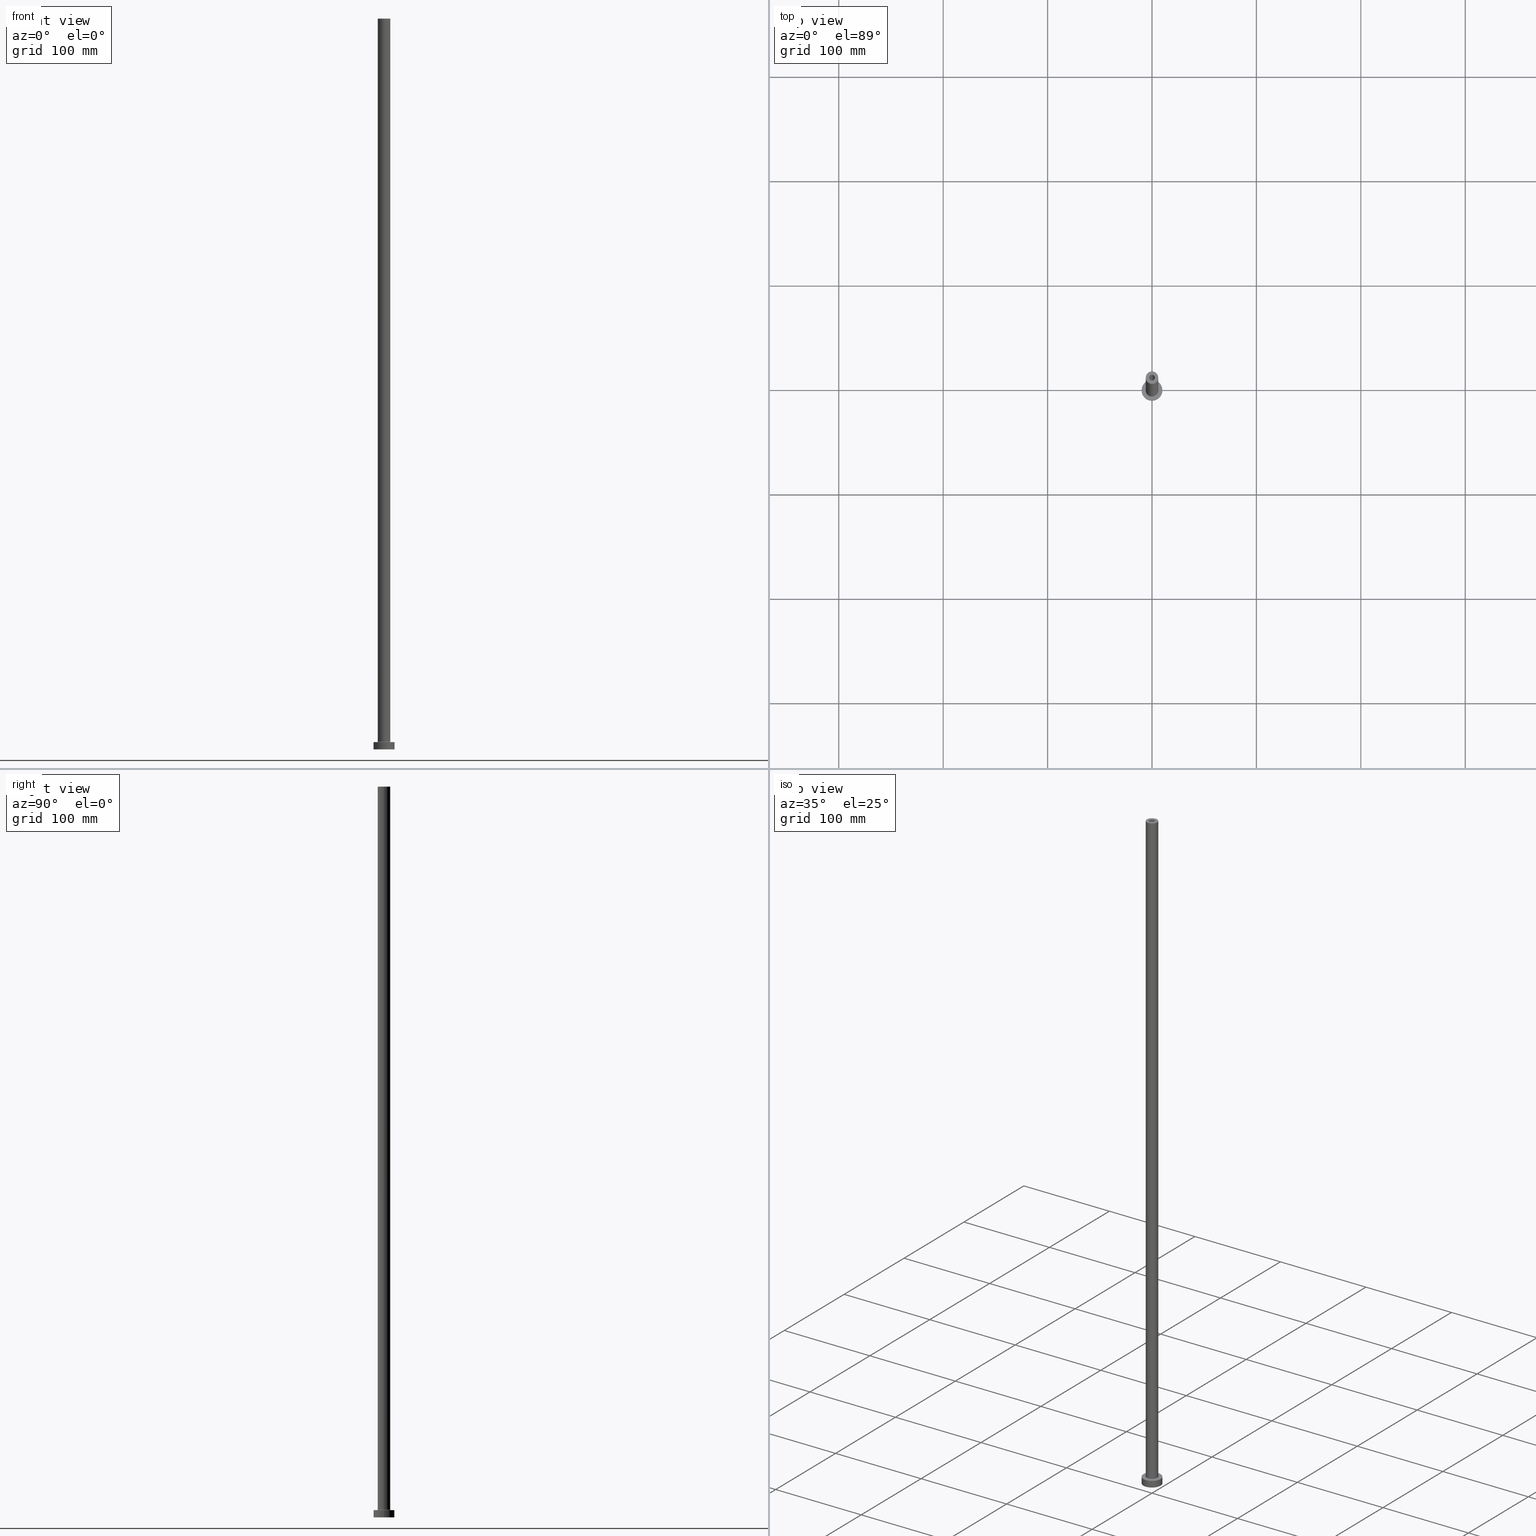
[diagram: canonical four-view strip — front | top / right | iso, engineering-drawing reading convention]
A machine part, canonical four-view strip (front | top / right | iso — engineering-drawing reading convention). The complete STEP part file that produces these views, byte-faithful:
ISO-10303-21;
HEADER;
FILE_DESCRIPTION (( 'STEP AP203' ),
    '1' );
FILE_NAME ('c770.STEP',
    '2023-02-13T15:52:32',
    ( '' ),
    ( '' ),
    'SwSTEP 2.0',
    'SolidWorks 2019',
    '' );
FILE_SCHEMA (( 'CONFIG_CONTROL_DESIGN' ));
ENDSEC;

DATA;
#1 = FACE_OUTER_BOUND ( 'NONE', #172, .T. ) ;
#2 = EDGE_CURVE ( 'NONE', #39, #442, #166, .T. ) ;
#3 = PERSON_AND_ORGANIZATION ( #159, #47 ) ;
#4 = ORIENTED_EDGE ( 'NONE', *, *, #199, .F. ) ;
#5 = PLANE ( 'NONE',  #275 ) ;
#6 = EDGE_CURVE ( 'NONE', #231, #229, #101, .T. ) ;
#7 = ORIENTED_EDGE ( 'NONE', *, *, #147, .F. ) ;
#8 = CYLINDRICAL_SURFACE ( 'NONE', #126, 2.750000000000000000 ) ;
#9 = SECURITY_CLASSIFICATION_LEVEL ( 'unclassified' ) ;
#10 = VECTOR ( 'NONE', #291, 1000.000000000000000 ) ;
#11 = PRODUCT_DEFINITION ( 'NEZN�M�', '', #296, #419 ) ;
#12 = DIRECTION ( 'NONE',  ( 0.000000000000000000, 0.000000000000000000, -1.000000000000000000 ) ) ;
#13 = ORIENTED_EDGE ( 'NONE', *, *, #209, .F. ) ;
#14 = DIRECTION ( 'NONE',  ( 1.000000000000000000, 0.000000000000000000, 0.000000000000000000 ) ) ;
#15 = ORIENTED_EDGE ( 'NONE', *, *, #248, .T. ) ;
#16 = EDGE_LOOP ( 'NONE', ( #394, #213, #215, #180 ) ) ;
#17 = ORIENTED_EDGE ( 'NONE', *, *, #444, .F. ) ;
#18 = CARTESIAN_POINT ( 'NONE',  ( 2.750000000000000000, 3.367778697655221012E-16, 654.9999999999998863 ) ) ;
#19 = CARTESIAN_POINT ( 'NONE',  ( 0.000000000000000000, 0.000000000000000000, 7.000000000000000000 ) ) ;
#20 = VERTEX_POINT ( 'NONE', #27 ) ;
#21 = CIRCLE ( 'NONE', #26, 6.000000000000000888 ) ;
#22 = LOCAL_TIME ( 16, 52, 32.00000000000000000, #434 ) ;
#23 = LINE ( 'NONE', #342, #86 ) ;
#24 = CARTESIAN_POINT ( 'NONE',  ( 0.000000000000000000, 0.000000000000000000, 0.000000000000000000 ) ) ;
#25 = ORIENTED_EDGE ( 'NONE', *, *, #2, .F. ) ;
#26 = AXIS2_PLACEMENT_3D ( 'NONE', #257, #289, #373 ) ;
#27 = CARTESIAN_POINT ( 'NONE',  ( -6.500000000000000888, 7.960204194457796463E-16, 6.999999999999975131 ) ) ;
#28 = FACE_OUTER_BOUND ( 'NONE', #453, .T. ) ;
#29 = DIRECTION ( 'NONE',  ( -1.000000000000000000, 0.000000000000000000, 0.000000000000000000 ) ) ;
#30 = APPROVAL_STATUS ( 'not_yet_approved' ) ;
#31 = FACE_OUTER_BOUND ( 'NONE', #43, .T. ) ;
#32 = APPROVAL_DATE_TIME ( #391, #334 ) ;
#33 = VERTEX_POINT ( 'NONE', #97 ) ;
#34 = AXIS2_PLACEMENT_3D ( 'NONE', #433, #361, #191 ) ;
#35 = DIRECTION ( 'NONE',  ( 0.000000000000000000, 0.000000000000000000, 1.000000000000000000 ) ) ;
#36 = EDGE_CURVE ( 'NONE', #271, #49, #366, .T. ) ;
#37 = ORIENTED_EDGE ( 'NONE', *, *, #444, .T. ) ;
#38 = CALENDAR_DATE ( 2023, 13, 2 ) ;
#39 = VERTEX_POINT ( 'NONE', #253 ) ;
#40 = ORIENTED_EDGE ( 'NONE', *, *, #266, .T. ) ;
#41 = DIRECTION ( 'NONE',  ( 0.000000000000000000, 0.000000000000000000, -1.000000000000000000 ) ) ;
#42 = CC_DESIGN_DATE_AND_TIME_ASSIGNMENT ( #118, #262, ( #52 ) ) ;
#43 = EDGE_LOOP ( 'NONE', ( #7, #40, #401, #359 ) ) ;
#44 = DATE_AND_TIME ( #178, #450 ) ;
#45 = LINE ( 'NONE', #188, #131 ) ;
#46 = EDGE_LOOP ( 'NONE', ( #285, #4 ) ) ;
#47 = ORGANIZATION ( 'NEUR�EN�', 'NEUR�EN�', '' ) ;
#48 = DIRECTION ( 'NONE',  ( 1.000000000000000000, 0.000000000000000000, 0.000000000000000000 ) ) ;
#49 = VERTEX_POINT ( 'NONE', #100 ) ;
#50 = AXIS2_PLACEMENT_3D ( 'NONE', #84, #268, #91 ) ;
#51 = AXIS2_PLACEMENT_3D ( 'NONE', #402, #263, #81 ) ;
#52 = SECURITY_CLASSIFICATION ( '', '', #9 ) ;
#53 = DIRECTION ( 'NONE',  ( 0.000000000000000000, 0.000000000000000000, -1.000000000000000000 ) ) ;
#54 = LINE ( 'NONE', #294, #355 ) ;
#55 = FACE_BOUND ( 'NONE', #330, .T. ) ;
#56 = CIRCLE ( 'NONE', #160, 2.750000000000000000 ) ;
#57 = DIRECTION ( 'NONE',  ( 1.000000000000000000, 0.000000000000000000, 0.000000000000000000 ) ) ;
#58 = ORIENTED_EDGE ( 'NONE', *, *, #6, .T. ) ;
#59 = DIRECTION ( 'NONE',  ( 0.000000000000000000, 0.000000000000000000, 1.000000000000000000 ) ) ;
#60 = EDGE_CURVE ( 'NONE', #49, #271, #302, .T. ) ;
#61 = DIRECTION ( 'NONE',  ( 0.000000000000000000, 0.000000000000000000, -1.000000000000000000 ) ) ;
#62 = CARTESIAN_POINT ( 'NONE',  ( 0.000000000000000000, 0.000000000000000000, 7.000000000000000000 ) ) ;
#63 = ORIENTED_EDGE ( 'NONE', *, *, #415, .T. ) ;
#64 = ORIENTED_EDGE ( 'NONE', *, *, #318, .T. ) ;
#65 = CIRCLE ( 'NONE', #50, 10.00000000000000000 ) ;
#66 = DIRECTION ( 'NONE',  ( -0.000000000000000000, -0.000000000000000000, -1.000000000000000000 ) ) ;
#67 = ADVANCED_FACE ( 'NONE', ( #105 ), #245, .T. ) ;
#68 = DIRECTION ( 'NONE',  ( -0.000000000000000000, -0.000000000000000000, -1.000000000000000000 ) ) ;
#69 = DIRECTION ( 'NONE',  ( 0.000000000000000000, -1.000000000000000000, 0.000000000000000000 ) ) ;
#70 = SHAPE_DEFINITION_REPRESENTATION ( #362, #351 ) ;
#71 = DIRECTION ( 'NONE',  ( 0.000000000000000000, 0.000000000000000000, 1.000000000000000000 ) ) ;
#72 = DIRECTION ( 'NONE',  ( 1.000000000000000000, 0.000000000000000000, 0.000000000000000000 ) ) ;
#73 = ADVANCED_FACE ( 'NONE', ( #273, #310 ), #5, .F. ) ;
#74 = CARTESIAN_POINT ( 'NONE',  ( 0.000000000000000000, 0.000000000000000000, 663.2024386617637219 ) ) ;
#75 = ORIENTED_EDGE ( 'NONE', *, *, #194, .F. ) ;
#76 = VECTOR ( 'NONE', #239, 1000.000000000000000 ) ;
#77 = APPROVAL_ROLE ( '' ) ;
#78 = ADVANCED_FACE ( 'NONE', ( #1 ), #278, .F. ) ;
#79 = DIRECTION ( 'NONE',  ( 1.224646799147353207E-16, 1.000000000000000000, -0.000000000000000000 ) ) ;
#80 = APPLICATION_PROTOCOL_DEFINITION ( 'international standard', 'config_control_design', 1994, #206 ) ;
#81 = DIRECTION ( 'NONE',  ( 1.000000000000000000, 0.000000000000000000, -0.000000000000000000 ) ) ;
#82 = EDGE_LOOP ( 'NONE', ( #17, #304, #413, #132 ) ) ;
#83 = CLOSED_SHELL ( 'NONE', ( #89, #78, #125, #356, #447, #451, #234, #382, #67, #403, #425, #168, #73, #230 ) ) ;
#84 = CARTESIAN_POINT ( 'NONE',  ( 0.000000000000000000, 0.000000000000000000, 7.000000000000000000 ) ) ;
#85 = EDGE_CURVE ( 'NONE', #442, #39, #337, .T. ) ;
#86 = VECTOR ( 'NONE', #378, 1000.000000000000000 ) ;
#87 = VERTEX_POINT ( 'NONE', #175 ) ;
#88 = AXIS2_PLACEMENT_3D ( 'NONE', #423, #35, #454 ) ;
#89 = ADVANCED_FACE ( 'NONE', ( #357 ), #354, .F. ) ;
#90 = LINE ( 'NONE', #111, #411 ) ;
#91 = DIRECTION ( 'NONE',  ( 1.000000000000000000, 0.000000000000000000, 0.000000000000000000 ) ) ;
#92 = CIRCLE ( 'NONE', #108, 0.5000000000000004441 ) ;
#93 =( NAMED_UNIT ( * ) PLANE_ANGLE_UNIT ( ) SI_UNIT ( $, .RADIAN. ) );
#94 = AXIS2_PLACEMENT_3D ( 'NONE', #365, #439, #14 ) ;
#95 =( GEOMETRIC_REPRESENTATION_CONTEXT ( 3 ) GLOBAL_UNCERTAINTY_ASSIGNED_CONTEXT ( ( #129 ) ) GLOBAL_UNIT_ASSIGNED_CONTEXT ( ( #417, #93, #430 ) ) REPRESENTATION_CONTEXT ( 'NONE', 'WORKASPACE' ) );
#96 = CARTESIAN_POINT ( 'NONE',  ( 0.000000000000000000, 0.000000000000000000, 700.0000000000000000 ) ) ;
#97 = CARTESIAN_POINT ( 'NONE',  ( -2.750000000000000000, 0.000000000000000000, 654.9999999999998863 ) ) ;
#98 = CARTESIAN_POINT ( 'NONE',  ( 0.000000000000000000, 0.000000000000000000, 700.0000000000000000 ) ) ;
#99 = EDGE_CURVE ( 'NONE', #116, #308, #92, .T. ) ;
#100 = CARTESIAN_POINT ( 'NONE',  ( 6.000000000000000888, 7.347880794884120722E-16, 700.0000000000000000 ) ) ;
#101 = CIRCLE ( 'NONE', #88, 2.899999999999999911 ) ;
#102 = DIRECTION ( 'NONE',  ( 1.000000000000000000, 0.000000000000000000, 0.000000000000000000 ) ) ;
#103 = ORIENTED_EDGE ( 'NONE', *, *, #153, .T. ) ;
#104 = AXIS2_PLACEMENT_3D ( 'NONE', #251, #71, #144 ) ;
#105 = FACE_OUTER_BOUND ( 'NONE', #16, .T. ) ;
#106 = EDGE_LOOP ( 'NONE', ( #348, #298, #15, #221 ) ) ;
#107 = DIRECTION ( 'NONE',  ( 0.000000000000000000, 0.000000000000000000, 1.000000000000000000 ) ) ;
#108 = AXIS2_PLACEMENT_3D ( 'NONE', #280, #69, #385 ) ;
#109 = PERSON_AND_ORGANIZATION ( #159, #47 ) ;
#110 = CC_DESIGN_PERSON_AND_ORGANIZATION_ASSIGNMENT ( #321, #283, ( #11 ) ) ;
#111 = CARTESIAN_POINT ( 'NONE',  ( -2.899999999999999911, 0.000000000000000000, 663.2024386617637219 ) ) ;
#112 = AXIS2_PLACEMENT_3D ( 'NONE', #62, #414, #207 ) ;
#113 = LOCAL_TIME ( 16, 52, 32.00000000000000000, #259 ) ;
#114 = CC_DESIGN_SECURITY_CLASSIFICATION ( #52, ( #296 ) ) ;
#115 = CARTESIAN_POINT ( 'NONE',  ( 0.000000000000000000, 0.000000000000000000, 0.000000000000000000 ) ) ;
#116 = VERTEX_POINT ( 'NONE', #353 ) ;
#117 = CARTESIAN_POINT ( 'NONE',  ( 0.000000000000000000, 0.000000000000000000, 7.499999999999951150 ) ) ;
#118 = DATE_AND_TIME ( #38, #309 ) ;
#119 = DIRECTION ( 'NONE',  ( 1.000000000000000000, 0.000000000000000000, 0.000000000000000000 ) ) ;
#120 = PRODUCT ( 'c770', 'c770', '', ( #143 ) ) ;
#121 = DIRECTION ( 'NONE',  ( 0.000000000000000000, 0.000000000000000000, 1.000000000000000000 ) ) ;
#122 = CC_DESIGN_PERSON_AND_ORGANIZATION_ASSIGNMENT ( #316, #324, ( #296 ) ) ;
#123 = AXIS2_PLACEMENT_3D ( 'NONE', #431, #152, #323 ) ;
#124 = EDGE_CURVE ( 'NONE', #271, #165, #208, .T. ) ;
#125 = ADVANCED_FACE ( 'NONE', ( #31 ), #435, .F. ) ;
#126 = AXIS2_PLACEMENT_3D ( 'NONE', #412, #41, #282 ) ;
#127 = CARTESIAN_POINT ( 'NONE',  ( -2.750000000000000000, 0.000000000000000000, 700.0000000000000000 ) ) ;
#128 = FACE_OUTER_BOUND ( 'NONE', #192, .T. ) ;
#129 = UNCERTAINTY_MEASURE_WITH_UNIT (LENGTH_MEASURE( 1.000000000000000082E-05 ), #417, 'distance_accuracy_value', 'NONE');
#130 = DIRECTION ( 'NONE',  ( 1.000000000000000000, 0.000000000000000000, -0.000000000000000000 ) ) ;
#131 = VECTOR ( 'NONE', #53, 1000.000000000000000 ) ;
#132 = ORIENTED_EDGE ( 'NONE', *, *, #369, .F. ) ;
#133 = DIRECTION ( 'NONE',  ( -1.000000000000000000, 0.000000000000000000, 0.000000000000000000 ) ) ;
#134 = CARTESIAN_POINT ( 'NONE',  ( 0.000000000000000000, 0.000000000000000000, 654.9999999999998863 ) ) ;
#135 = EDGE_LOOP ( 'NONE', ( #25, #343 ) ) ;
#136 = CARTESIAN_POINT ( 'NONE',  ( 0.000000000000000000, 0.000000000000000000, 7.000000000000000000 ) ) ;
#137 = ORIENTED_EDGE ( 'NONE', *, *, #60, .T. ) ;
#138 = ORIENTED_EDGE ( 'NONE', *, *, #6, .F. ) ;
#139 = AXIS2_PLACEMENT_3D ( 'NONE', #74, #247, #29 ) ;
#140 = DATE_AND_TIME ( #458, #418 ) ;
#141 = CIRCLE ( 'NONE', #367, 0.5000000000000004441 ) ;
#142 = ORIENTED_EDGE ( 'NONE', *, *, #332, .T. ) ;
#143 = MECHANICAL_CONTEXT ( 'NONE', #206, 'mechanical' ) ;
#144 = DIRECTION ( 'NONE',  ( 1.000000000000000000, 0.000000000000000000, 0.000000000000000000 ) ) ;
#145 = EDGE_CURVE ( 'NONE', #229, #231, #441, .T. ) ;
#146 = CARTESIAN_POINT ( 'NONE',  ( 0.000000000000000000, 0.000000000000000000, 0.000000000000000000 ) ) ;
#147 = EDGE_CURVE ( 'NONE', #165, #116, #254, .T. ) ;
#148 = ORIENTED_EDGE ( 'NONE', *, *, #163, .F. ) ;
#149 = DIRECTION ( 'NONE',  ( -1.000000000000000000, 0.000000000000000000, 0.000000000000000000 ) ) ;
#150 = PERSON_AND_ORGANIZATION ( #159, #47 ) ;
#151 = DIRECTION ( 'NONE',  ( 1.000000000000000000, 0.000000000000000000, 0.000000000000000000 ) ) ;
#152 = DIRECTION ( 'NONE',  ( 0.000000000000000000, 0.000000000000000000, 1.000000000000000000 ) ) ;
#153 = EDGE_CURVE ( 'NONE', #33, #193, #189, .T. ) ;
#154 = ORIENTED_EDGE ( 'NONE', *, *, #145, .T. ) ;
#155 = ORIENTED_EDGE ( 'NONE', *, *, #223, .T. ) ;
#156 = ORIENTED_EDGE ( 'NONE', *, *, #409, .F. ) ;
#157 = FACE_OUTER_BOUND ( 'NONE', #360, .T. ) ;
#158 = AXIS2_PLACEMENT_3D ( 'NONE', #395, #428, #315 ) ;
#159 = PERSON ( 'NEUR�EN�', 'NEUR�EN�', 'NEUR�EN�', ('NEUR�EN�'), ('NEUR�EN�'), ('NEUR�EN�') ) ;
#160 = AXIS2_PLACEMENT_3D ( 'NONE', #222, #121, #119 ) ;
#161 = DIRECTION ( 'NONE',  ( 1.000000000000000000, 0.000000000000000000, 0.000000000000000000 ) ) ;
#162 = CARTESIAN_POINT ( 'NONE',  ( 0.000000000000000000, 0.000000000000000000, 7.499999999999951150 ) ) ;
#163 = EDGE_CURVE ( 'NONE', #20, #308, #179, .T. ) ;
#164 = CARTESIAN_POINT ( 'NONE',  ( 0.000000000000000000, 0.000000000000000000, 654.9999999999998863 ) ) ;
#165 = VERTEX_POINT ( 'NONE', #326 ) ;
#166 = CIRCLE ( 'NONE', #244, 10.00000000000000000 ) ;
#167 = ORIENTED_EDGE ( 'NONE', *, *, #145, .F. ) ;
#168 = ADVANCED_FACE ( 'NONE', ( #157 ), #327, .F. ) ;
#169 = CYLINDRICAL_SURFACE ( 'NONE', #112, 10.00000000000000000 ) ;
#170 = EDGE_LOOP ( 'NONE', ( #167, #138 ) ) ;
#171 = AXIS2_PLACEMENT_3D ( 'NONE', #246, #445, #388 ) ;
#172 = EDGE_LOOP ( 'NONE', ( #154, #341, #314, #75 ) ) ;
#173 = DIRECTION ( 'NONE',  ( 1.000000000000000000, 0.000000000000000000, 0.000000000000000000 ) ) ;
#174 = DIRECTION ( 'NONE',  ( 1.000000000000000000, 0.000000000000000000, 0.000000000000000000 ) ) ;
#175 = CARTESIAN_POINT ( 'NONE',  ( 2.750000000000000000, 3.367778697655221012E-16, 700.0000000000000000 ) ) ;
#176 = APPROVAL_ROLE ( '' ) ;
#177 = AXIS2_PLACEMENT_3D ( 'NONE', #317, #217, #173 ) ;
#178 = CALENDAR_DATE ( 2023, 13, 2 ) ;
#179 = CIRCLE ( 'NONE', #34, 6.500000000000000888 ) ;
#180 = ORIENTED_EDGE ( 'NONE', *, *, #147, .T. ) ;
#181 = DATE_TIME_ROLE ( 'creation_date' ) ;
#182 = DIRECTION ( 'NONE',  ( -1.000000000000000000, 0.000000000000000000, 0.000000000000000000 ) ) ;
#183 = CC_DESIGN_PERSON_AND_ORGANIZATION_ASSIGNMENT ( #3, #461, ( #296 ) ) ;
#184 = PERSON_AND_ORGANIZATION_ROLE ( 'design_owner' ) ;
#185 = ORIENTED_EDGE ( 'NONE', *, *, #269, .F. ) ;
#186 = DIRECTION ( 'NONE',  ( 0.000000000000000000, 0.000000000000000000, -1.000000000000000000 ) ) ;
#187 = APPROVAL_DATE_TIME ( #44, #379 ) ;
#188 = CARTESIAN_POINT ( 'NONE',  ( 2.899999999999999911, 3.551475717527323832E-16, 663.2024386617637219 ) ) ;
#189 = CIRCLE ( 'NONE', #376, 2.750000000000000000 ) ;
#190 = CC_DESIGN_APPROVAL ( #284, ( #52 ) ) ;
#191 = DIRECTION ( 'NONE',  ( 1.000000000000000000, 0.000000000000000000, 0.000000000000000000 ) ) ;
#192 = EDGE_LOOP ( 'NONE', ( #236, #405, #333, #371 ) ) ;
#193 = VERTEX_POINT ( 'NONE', #18 ) ;
#194 = EDGE_CURVE ( 'NONE', #229, #457, #90, .T. ) ;
#195 = TOROIDAL_SURFACE ( 'NONE', #325, 6.500000000000000888, 0.5000000000000000000 ) ;
#196 = APPROVAL_PERSON_ORGANIZATION ( #279, #379, #77 ) ;
#197 = EDGE_LOOP ( 'NONE', ( #64, #37 ) ) ;
#198 = DIRECTION ( 'NONE',  ( 0.000000000000000000, 0.000000000000000000, -1.000000000000000000 ) ) ;
#199 = EDGE_CURVE ( 'NONE', #380, #457, #295, .T. ) ;
#200 = FACE_BOUND ( 'NONE', #303, .T. ) ;
#201 = FACE_OUTER_BOUND ( 'NONE', #370, .T. ) ;
#202 = CC_DESIGN_DATE_AND_TIME_ASSIGNMENT ( #363, #181, ( #11 ) ) ;
#203 = CC_DESIGN_APPROVAL ( #334, ( #11 ) ) ;
#204 = FACE_OUTER_BOUND ( 'NONE', #82, .T. ) ;
#205 = VERTEX_POINT ( 'NONE', #127 ) ;
#206 = APPLICATION_CONTEXT ( 'configuration controlled 3d designs of mechanical parts and assemblies' ) ;
#207 = DIRECTION ( 'NONE',  ( -1.000000000000000000, 0.000000000000000000, 0.000000000000000000 ) ) ;
#208 = LINE ( 'NONE', #216, #386 ) ;
#209 = EDGE_CURVE ( 'NONE', #116, #165, #21, .T. ) ;
#210 = PLANE ( 'NONE',  #286 ) ;
#211 = ORIENTED_EDGE ( 'NONE', *, *, #153, .F. ) ;
#212 = AXIS2_PLACEMENT_3D ( 'NONE', #117, #410, #48 ) ;
#213 = ORIENTED_EDGE ( 'NONE', *, *, #36, .F. ) ;
#214 = CARTESIAN_POINT ( 'NONE',  ( 10.00000000000000000, 1.224646799147353256E-15, 0.000000000000000000 ) ) ;
#215 = ORIENTED_EDGE ( 'NONE', *, *, #124, .T. ) ;
#216 = CARTESIAN_POINT ( 'NONE',  ( -6.000000000000000888, 0.000000000000000000, 700.0000000000000000 ) ) ;
#217 = DIRECTION ( 'NONE',  ( 0.000000000000000000, 0.000000000000000000, 1.000000000000000000 ) ) ;
#218 = AXIS2_PLACEMENT_3D ( 'NONE', #19, #352, #174 ) ;
#219 = DIRECTION ( 'NONE',  ( 1.000000000000000000, 0.000000000000000000, 0.000000000000000000 ) ) ;
#220 = APPROVAL_DATE_TIME ( #140, #284 ) ;
#221 = ORIENTED_EDGE ( 'NONE', *, *, #422, .F. ) ;
#222 = CARTESIAN_POINT ( 'NONE',  ( 0.000000000000000000, 0.000000000000000000, 700.0000000000000000 ) ) ;
#223 = EDGE_CURVE ( 'NONE', #87, #193, #287, .T. ) ;
#224 = APPROVAL_STATUS ( 'not_yet_approved' ) ;
#225 = CARTESIAN_POINT ( 'NONE',  ( 2.899999999999999911, 3.551475717527323832E-16, 654.9999999999998863 ) ) ;
#226 = PERSON_AND_ORGANIZATION ( #159, #47 ) ;
#227 = FACE_OUTER_BOUND ( 'NONE', #106, .T. ) ;
#228 = AXIS2_PLACEMENT_3D ( 'NONE', #243, #448, #340 ) ;
#229 = VERTEX_POINT ( 'NONE', #336 ) ;
#230 = ADVANCED_FACE ( 'NONE', ( #227 ), #8, .F. ) ;
#231 = VERTEX_POINT ( 'NONE', #225 ) ;
#232 = ORIENTED_EDGE ( 'NONE', *, *, #240, .F. ) ;
#233 = DIRECTION ( 'NONE',  ( 0.000000000000000000, 0.000000000000000000, 1.000000000000000000 ) ) ;
#234 = ADVANCED_FACE ( 'NONE', ( #200, #399 ), #261, .T. ) ;
#235 = CARTESIAN_POINT ( 'NONE',  ( 0.000000000000000000, 0.000000000000000000, 654.9999999999998863 ) ) ;
#236 = ORIENTED_EDGE ( 'NONE', *, *, #60, .F. ) ;
#237 = LINE ( 'NONE', #270, #76 ) ;
#238 = AXIS2_PLACEMENT_3D ( 'NONE', #320, #383, #219 ) ;
#239 = DIRECTION ( 'NONE',  ( -0.000000000000000000, -0.000000000000000000, -1.000000000000000000 ) ) ;
#240 = EDGE_CURVE ( 'NONE', #231, #380, #45, .T. ) ;
#241 = DIRECTION ( 'NONE',  ( 1.000000000000000000, 0.000000000000000000, 0.000000000000000000 ) ) ;
#242 = DIRECTION ( 'NONE',  ( 0.000000000000000000, 0.000000000000000000, 1.000000000000000000 ) ) ;
#243 = CARTESIAN_POINT ( 'NONE',  ( 0.000000000000000000, 0.000000000000000000, 0.000000000000000000 ) ) ;
#244 = AXIS2_PLACEMENT_3D ( 'NONE', #146, #107, #456 ) ;
#245 = CYLINDRICAL_SURFACE ( 'NONE', #158, 6.000000000000000888 ) ;
#246 = CARTESIAN_POINT ( 'NONE',  ( 0.000000000000000000, 0.000000000000000000, 700.0000000000000000 ) ) ;
#247 = DIRECTION ( 'NONE',  ( 0.000000000000000000, 0.000000000000000000, -1.000000000000000000 ) ) ;
#248 = EDGE_CURVE ( 'NONE', #205, #33, #54, .T. ) ;
#249 = APPROVAL_STATUS ( 'not_yet_approved' ) ;
#250 = ORIENTED_EDGE ( 'NONE', *, *, #99, .T. ) ;
#251 = CARTESIAN_POINT ( 'NONE',  ( 0.000000000000000000, 0.000000000000000000, 7.499999999999951150 ) ) ;
#252 = ORIENTED_EDGE ( 'NONE', *, *, #369, .T. ) ;
#253 = CARTESIAN_POINT ( 'NONE',  ( -10.00000000000000000, 0.000000000000000000, 0.000000000000000000 ) ) ;
#254 = CIRCLE ( 'NONE', #212, 6.000000000000000888 ) ;
#255 = ORIENTED_EDGE ( 'NONE', *, *, #163, .T. ) ;
#256 = AXIS2_PLACEMENT_3D ( 'NONE', #98, #349, #133 ) ;
#257 = CARTESIAN_POINT ( 'NONE',  ( 0.000000000000000000, 0.000000000000000000, 7.499999999999951150 ) ) ;
#258 = CC_DESIGN_APPROVAL ( #379, ( #296 ) ) ;
#259 = COORDINATED_UNIVERSAL_TIME_OFFSET ( 1, 0, .AHEAD. ) ;
#260 = CC_DESIGN_PERSON_AND_ORGANIZATION_ASSIGNMENT ( #150, #288, ( #52 ) ) ;
#261 = PLANE ( 'NONE',  #51 ) ;
#262 = DATE_TIME_ROLE ( 'classification_date' ) ;
#263 = DIRECTION ( 'NONE',  ( 0.000000000000000000, 0.000000000000000000, 1.000000000000000000 ) ) ;
#264 = MANIFOLD_SOLID_BREP ( 'Odebrat vysunut�m4', #83 ) ;
#265 = CARTESIAN_POINT ( 'NONE',  ( 10.00000000000000000, 1.224646799147353256E-15, 7.000000000000000000 ) ) ;
#266 = EDGE_CURVE ( 'NONE', #165, #20, #141, .T. ) ;
#267 = AXIS2_PLACEMENT_3D ( 'NONE', #164, #59, #102 ) ;
#268 = DIRECTION ( 'NONE',  ( 0.000000000000000000, 0.000000000000000000, 1.000000000000000000 ) ) ;
#269 = EDGE_CURVE ( 'NONE', #205, #87, #56, .T. ) ;
#270 = CARTESIAN_POINT ( 'NONE',  ( -10.00000000000000000, 0.000000000000000000, 7.000000000000000000 ) ) ;
#271 = VERTEX_POINT ( 'NONE', #338 ) ;
#272 = CYLINDRICAL_SURFACE ( 'NONE', #256, 6.000000000000000888 ) ;
#273 = FACE_BOUND ( 'NONE', #432, .T. ) ;
#274 = CARTESIAN_POINT ( 'NONE',  ( -2.899999999999999911, 0.000000000000000000, 0.000000000000000000 ) ) ;
#275 = AXIS2_PLACEMENT_3D ( 'NONE', #134, #426, #347 ) ;
#276 = ORIENTED_EDGE ( 'NONE', *, *, #318, .F. ) ;
#277 = VECTOR ( 'NONE', #299, 1000.000000000000000 ) ;
#278 = CYLINDRICAL_SURFACE ( 'NONE', #139, 2.899999999999999911 ) ;
#279 = PERSON_AND_ORGANIZATION ( #159, #47 ) ;
#280 = CARTESIAN_POINT ( 'NONE',  ( 6.500000000000000888, 0.000000000000000000, 7.499999999999951150 ) ) ;
#281 = DIRECTION ( 'NONE',  ( 0.000000000000000000, 0.000000000000000000, 1.000000000000000000 ) ) ;
#282 = DIRECTION ( 'NONE',  ( -1.000000000000000000, 0.000000000000000000, 0.000000000000000000 ) ) ;
#283 = PERSON_AND_ORGANIZATION_ROLE ( 'creator' ) ;
#284 = APPROVAL ( #30, 'NEUR�EN�' ) ;
#285 = ORIENTED_EDGE ( 'NONE', *, *, #415, .F. ) ;
#286 = AXIS2_PLACEMENT_3D ( 'NONE', #96, #452, #130 ) ;
#287 = LINE ( 'NONE', #437, #10 ) ;
#288 = PERSON_AND_ORGANIZATION_ROLE ( 'classification_officer' ) ;
#289 = DIRECTION ( 'NONE',  ( 0.000000000000000000, 0.000000000000000000, 1.000000000000000000 ) ) ;
#290 = ORIENTED_EDGE ( 'NONE', *, *, #266, .F. ) ;
#291 = DIRECTION ( 'NONE',  ( 0.000000000000000000, 0.000000000000000000, -1.000000000000000000 ) ) ;
#292 = AXIS2_PLACEMENT_3D ( 'NONE', #390, #61, #182 ) ;
#293 = AXIS2_PLACEMENT_3D ( 'NONE', #374, #198, #149 ) ;
#294 = CARTESIAN_POINT ( 'NONE',  ( -2.750000000000000000, 0.000000000000000000, 700.0000000000000000 ) ) ;
#295 = CIRCLE ( 'NONE', #94, 2.899999999999999911 ) ;
#296 = PRODUCT_DEFINITION_FORMATION_WITH_SPECIFIED_SOURCE ( 'LIBOVOLN�', '', #120, .NOT_KNOWN. ) ;
#297 = DIRECTION ( 'NONE',  ( 0.000000000000000000, 0.000000000000000000, 1.000000000000000000 ) ) ;
#298 = ORIENTED_EDGE ( 'NONE', *, *, #459, .T. ) ;
#299 = DIRECTION ( 'NONE',  ( -0.000000000000000000, -0.000000000000000000, -1.000000000000000000 ) ) ;
#300 = ORIENTED_EDGE ( 'NONE', *, *, #194, .T. ) ;
#301 = PLANE ( 'NONE',  #228 ) ;
#302 = CIRCLE ( 'NONE', #177, 6.000000000000000888 ) ;
#303 = EDGE_LOOP ( 'NONE', ( #142, #255 ) ) ;
#304 = ORIENTED_EDGE ( 'NONE', *, *, #409, .T. ) ;
#305 = CC_DESIGN_PERSON_AND_ORGANIZATION_ASSIGNMENT ( #358, #184, ( #120 ) ) ;
#306 = AXIS2_PLACEMENT_3D ( 'NONE', #384, #381, #241 ) ;
#307 = CYLINDRICAL_SURFACE ( 'NONE', #372, 10.00000000000000000 ) ;
#308 = VERTEX_POINT ( 'NONE', #406 ) ;
#309 = LOCAL_TIME ( 16, 52, 32.00000000000000000, #438 ) ;
#310 = FACE_OUTER_BOUND ( 'NONE', #170, .T. ) ;
#311 = DIRECTION ( 'NONE',  ( -0.000000000000000000, -0.000000000000000000, -1.000000000000000000 ) ) ;
#312 = ORIENTED_EDGE ( 'NONE', *, *, #422, .T. ) ;
#313 = COORDINATED_UNIVERSAL_TIME_OFFSET ( 1, 0, .AHEAD. ) ;
#314 = ORIENTED_EDGE ( 'NONE', *, *, #199, .T. ) ;
#315 = DIRECTION ( 'NONE',  ( -1.000000000000000000, 0.000000000000000000, 0.000000000000000000 ) ) ;
#316 = PERSON_AND_ORGANIZATION ( #159, #47 ) ;
#317 = CARTESIAN_POINT ( 'NONE',  ( 0.000000000000000000, 0.000000000000000000, 700.0000000000000000 ) ) ;
#318 = EDGE_CURVE ( 'NONE', #328, #329, #65, .T. ) ;
#319 = COORDINATED_UNIVERSAL_TIME_OFFSET ( 1, 0, .AHEAD. ) ;
#320 = CARTESIAN_POINT ( 'NONE',  ( 0.000000000000000000, 0.000000000000000000, 0.000000000000000000 ) ) ;
#321 = PERSON_AND_ORGANIZATION ( #159, #47 ) ;
#322 = ORIENTED_EDGE ( 'NONE', *, *, #459, .F. ) ;
#323 = DIRECTION ( 'NONE',  ( 1.000000000000000000, 0.000000000000000000, 0.000000000000000000 ) ) ;
#324 = PERSON_AND_ORGANIZATION_ROLE ( 'creator' ) ;
#325 = AXIS2_PLACEMENT_3D ( 'NONE', #162, #297, #57 ) ;
#326 = CARTESIAN_POINT ( 'NONE',  ( -6.000000000000000888, 0.000000000000000000, 7.499999999999951150 ) ) ;
#327 = CYLINDRICAL_SURFACE ( 'NONE', #293, 2.899999999999999911 ) ;
#328 = VERTEX_POINT ( 'NONE', #368 ) ;
#329 = VERTEX_POINT ( 'NONE', #265 ) ;
#330 = EDGE_LOOP ( 'NONE', ( #185, #322 ) ) ;
#331 = AXIS2_PLACEMENT_3D ( 'NONE', #24, #68, #161 ) ;
#332 = EDGE_CURVE ( 'NONE', #308, #20, #429, .T. ) ;
#333 = ORIENTED_EDGE ( 'NONE', *, *, #209, .T. ) ;
#334 = APPROVAL ( #249, 'NEUR�EN�' ) ;
#335 = EDGE_LOOP ( 'NONE', ( #290, #13, #250, #148 ) ) ;
#336 = CARTESIAN_POINT ( 'NONE',  ( -2.899999999999999911, 0.000000000000000000, 654.9999999999998863 ) ) ;
#337 = CIRCLE ( 'NONE', #238, 10.00000000000000000 ) ;
#338 = CARTESIAN_POINT ( 'NONE',  ( -6.000000000000000888, 0.000000000000000000, 700.0000000000000000 ) ) ;
#339 = CIRCLE ( 'NONE', #331, 2.899999999999999911 ) ;
#340 = DIRECTION ( 'NONE',  ( 1.000000000000000000, 0.000000000000000000, -0.000000000000000000 ) ) ;
#341 = ORIENTED_EDGE ( 'NONE', *, *, #240, .T. ) ;
#342 = CARTESIAN_POINT ( 'NONE',  ( 10.00000000000000000, 1.224646799147353256E-15, 7.000000000000000000 ) ) ;
#343 = ORIENTED_EDGE ( 'NONE', *, *, #85, .F. ) ;
#344 = PRODUCT_RELATED_PRODUCT_CATEGORY ( 'detail', '', ( #120 ) ) ;
#345 = LINE ( 'NONE', #455, #277 ) ;
#346 = ORIENTED_EDGE ( 'NONE', *, *, #2, .T. ) ;
#347 = DIRECTION ( 'NONE',  ( 1.000000000000000000, 0.000000000000000000, -0.000000000000000000 ) ) ;
#348 = ORIENTED_EDGE ( 'NONE', *, *, #223, .F. ) ;
#349 = DIRECTION ( 'NONE',  ( -0.000000000000000000, -0.000000000000000000, -1.000000000000000000 ) ) ;
#350 = ORIENTED_EDGE ( 'NONE', *, *, #248, .F. ) ;
#351 = ADVANCED_BREP_SHAPE_REPRESENTATION ( 'c770', ( #264, #387 ), #95 ) ;
#352 = DIRECTION ( 'NONE',  ( -0.000000000000000000, -0.000000000000000000, -1.000000000000000000 ) ) ;
#353 = CARTESIAN_POINT ( 'NONE',  ( 6.000000000000000888, 7.347880794884120722E-16, 7.499999999999951150 ) ) ;
#354 = CYLINDRICAL_SURFACE ( 'NONE', #292, 2.750000000000000000 ) ;
#355 = VECTOR ( 'NONE', #186, 1000.000000000000000 ) ;
#356 = ADVANCED_FACE ( 'NONE', ( #128 ), #272, .T. ) ;
#357 = FACE_OUTER_BOUND ( 'NONE', #421, .T. ) ;
#358 = PERSON_AND_ORGANIZATION ( #159, #47 ) ;
#359 = ORIENTED_EDGE ( 'NONE', *, *, #99, .F. ) ;
#360 = EDGE_LOOP ( 'NONE', ( #232, #58, #300, #63 ) ) ;
#361 = DIRECTION ( 'NONE',  ( -0.000000000000000000, -0.000000000000000000, -1.000000000000000000 ) ) ;
#362 = PRODUCT_DEFINITION_SHAPE ( 'NONE', 'NONE',  #11 ) ;
#363 = DATE_AND_TIME ( #396, #22 ) ;
#364 = ORIENTED_EDGE ( 'NONE', *, *, #36, .T. ) ;
#365 = CARTESIAN_POINT ( 'NONE',  ( 0.000000000000000000, 0.000000000000000000, 0.000000000000000000 ) ) ;
#366 = CIRCLE ( 'NONE', #416, 6.000000000000000888 ) ;
#367 = AXIS2_PLACEMENT_3D ( 'NONE', #440, #79, #443 ) ;
#368 = CARTESIAN_POINT ( 'NONE',  ( -10.00000000000000000, 0.000000000000000000, 7.000000000000000000 ) ) ;
#369 = EDGE_CURVE ( 'NONE', #328, #39, #237, .T. ) ;
#370 = EDGE_LOOP ( 'NONE', ( #364, #137 ) ) ;
#371 = ORIENTED_EDGE ( 'NONE', *, *, #124, .F. ) ;
#372 = AXIS2_PLACEMENT_3D ( 'NONE', #136, #311, #446 ) ;
#373 = DIRECTION ( 'NONE',  ( 1.000000000000000000, 0.000000000000000000, 0.000000000000000000 ) ) ;
#374 = CARTESIAN_POINT ( 'NONE',  ( 0.000000000000000000, 0.000000000000000000, 663.2024386617637219 ) ) ;
#375 = FACE_BOUND ( 'NONE', #46, .T. ) ;
#376 = AXIS2_PLACEMENT_3D ( 'NONE', #235, #233, #151 ) ;
#377 = APPROVAL_PERSON_ORGANIZATION ( #109, #334, #404 ) ;
#378 = DIRECTION ( 'NONE',  ( -0.000000000000000000, -0.000000000000000000, -1.000000000000000000 ) ) ;
#379 = APPROVAL ( #224, 'NEUR�EN�' ) ;
#380 = VERTEX_POINT ( 'NONE', #424 ) ;
#381 = DIRECTION ( 'NONE',  ( 0.000000000000000000, 0.000000000000000000, 1.000000000000000000 ) ) ;
#382 = ADVANCED_FACE ( 'NONE', ( #375, #427 ), #301, .F. ) ;
#383 = DIRECTION ( 'NONE',  ( 0.000000000000000000, 0.000000000000000000, 1.000000000000000000 ) ) ;
#384 = CARTESIAN_POINT ( 'NONE',  ( 0.000000000000000000, 0.000000000000000000, 7.000000000000000000 ) ) ;
#385 = DIRECTION ( 'NONE',  ( 0.000000000000000000, 0.000000000000000000, -1.000000000000000000 ) ) ;
#386 = VECTOR ( 'NONE', #66, 1000.000000000000000 ) ;
#387 = AXIS2_PLACEMENT_3D ( 'NONE', #115, #281, #72 ) ;
#388 = DIRECTION ( 'NONE',  ( 1.000000000000000000, 0.000000000000000000, 0.000000000000000000 ) ) ;
#389 = APPLICATION_CONTEXT ( 'configuration controlled 3d designs of mechanical parts and assemblies' ) ;
#390 = CARTESIAN_POINT ( 'NONE',  ( 0.000000000000000000, 0.000000000000000000, 700.0000000000000000 ) ) ;
#391 = DATE_AND_TIME ( #400, #113 ) ;
#392 = DIRECTION ( 'NONE',  ( 1.000000000000000000, 0.000000000000000000, 0.000000000000000000 ) ) ;
#393 = APPLICATION_PROTOCOL_DEFINITION ( 'international standard', 'config_control_design', 1994, #389 ) ;
#394 = ORIENTED_EDGE ( 'NONE', *, *, #398, .F. ) ;
#395 = CARTESIAN_POINT ( 'NONE',  ( 0.000000000000000000, 0.000000000000000000, 700.0000000000000000 ) ) ;
#396 = CALENDAR_DATE ( 2023, 13, 2 ) ;
#397 = CIRCLE ( 'NONE', #267, 2.750000000000000000 ) ;
#398 = EDGE_CURVE ( 'NONE', #49, #116, #345, .T. ) ;
#399 = FACE_OUTER_BOUND ( 'NONE', #197, .T. ) ;
#400 = CALENDAR_DATE ( 2023, 13, 2 ) ;
#401 = ORIENTED_EDGE ( 'NONE', *, *, #332, .F. ) ;
#402 = CARTESIAN_POINT ( 'NONE',  ( 0.000000000000000000, 0.000000000000000000, 7.000000000000000000 ) ) ;
#403 = ADVANCED_FACE ( 'NONE', ( #55, #201 ), #210, .T. ) ;
#404 = APPROVAL_ROLE ( '' ) ;
#405 = ORIENTED_EDGE ( 'NONE', *, *, #398, .T. ) ;
#406 = CARTESIAN_POINT ( 'NONE',  ( 6.500000000000000888, 0.000000000000000000, 6.999999999999975131 ) ) ;
#407 = CIRCLE ( 'NONE', #306, 10.00000000000000000 ) ;
#408 = APPROVAL_PERSON_ORGANIZATION ( #226, #284, #176 ) ;
#409 = EDGE_CURVE ( 'NONE', #329, #442, #23, .T. ) ;
#410 = DIRECTION ( 'NONE',  ( 0.000000000000000000, 0.000000000000000000, 1.000000000000000000 ) ) ;
#411 = VECTOR ( 'NONE', #12, 1000.000000000000000 ) ;
#412 = CARTESIAN_POINT ( 'NONE',  ( 0.000000000000000000, 0.000000000000000000, 700.0000000000000000 ) ) ;
#413 = ORIENTED_EDGE ( 'NONE', *, *, #85, .T. ) ;
#414 = DIRECTION ( 'NONE',  ( -0.000000000000000000, -0.000000000000000000, -1.000000000000000000 ) ) ;
#415 = EDGE_CURVE ( 'NONE', #457, #380, #339, .T. ) ;
#416 = AXIS2_PLACEMENT_3D ( 'NONE', #460, #242, #392 ) ;
#417 =( LENGTH_UNIT ( ) NAMED_UNIT ( * ) SI_UNIT ( .MILLI., .METRE. ) );
#418 = LOCAL_TIME ( 16, 52, 32.00000000000000000, #313 ) ;
#419 = DESIGN_CONTEXT ( 'detailed design', #389, 'design' ) ;
#420 = FACE_OUTER_BOUND ( 'NONE', #335, .T. ) ;
#421 = EDGE_LOOP ( 'NONE', ( #436, #155, #211, #350 ) ) ;
#422 = EDGE_CURVE ( 'NONE', #193, #33, #397, .T. ) ;
#423 = CARTESIAN_POINT ( 'NONE',  ( 0.000000000000000000, 0.000000000000000000, 654.9999999999998863 ) ) ;
#424 = CARTESIAN_POINT ( 'NONE',  ( 2.899999999999999911, 3.551475717527323832E-16, 0.000000000000000000 ) ) ;
#425 = ADVANCED_FACE ( 'NONE', ( #420 ), #195, .F. ) ;
#426 = DIRECTION ( 'NONE',  ( 0.000000000000000000, 0.000000000000000000, 1.000000000000000000 ) ) ;
#427 = FACE_OUTER_BOUND ( 'NONE', #135, .T. ) ;
#428 = DIRECTION ( 'NONE',  ( -0.000000000000000000, -0.000000000000000000, -1.000000000000000000 ) ) ;
#429 = CIRCLE ( 'NONE', #218, 6.500000000000000888 ) ;
#430 =( NAMED_UNIT ( * ) SI_UNIT ( $, .STERADIAN. ) SOLID_ANGLE_UNIT ( ) );
#431 = CARTESIAN_POINT ( 'NONE',  ( 0.000000000000000000, 0.000000000000000000, 654.9999999999998863 ) ) ;
#432 = EDGE_LOOP ( 'NONE', ( #103, #312 ) ) ;
#433 = CARTESIAN_POINT ( 'NONE',  ( 0.000000000000000000, 0.000000000000000000, 7.000000000000000000 ) ) ;
#434 = COORDINATED_UNIVERSAL_TIME_OFFSET ( 1, 0, .AHEAD. ) ;
#435 = TOROIDAL_SURFACE ( 'NONE', #104, 6.500000000000000888, 0.5000000000000000000 ) ;
#436 = ORIENTED_EDGE ( 'NONE', *, *, #269, .T. ) ;
#437 = CARTESIAN_POINT ( 'NONE',  ( 2.750000000000000000, 3.367778697655221012E-16, 700.0000000000000000 ) ) ;
#438 = COORDINATED_UNIVERSAL_TIME_OFFSET ( 1, 0, .AHEAD. ) ;
#439 = DIRECTION ( 'NONE',  ( -0.000000000000000000, -0.000000000000000000, -1.000000000000000000 ) ) ;
#440 = CARTESIAN_POINT ( 'NONE',  ( -6.500000000000000888, 7.960204194457796463E-16, 7.499999999999951150 ) ) ;
#441 = CIRCLE ( 'NONE', #123, 2.899999999999999911 ) ;
#442 = VERTEX_POINT ( 'NONE', #214 ) ;
#443 = DIRECTION ( 'NONE',  ( -1.000000000000000000, 1.224646799147351482E-16, 0.000000000000000000 ) ) ;
#444 = EDGE_CURVE ( 'NONE', #329, #328, #407, .T. ) ;
#445 = DIRECTION ( 'NONE',  ( 0.000000000000000000, 0.000000000000000000, 1.000000000000000000 ) ) ;
#446 = DIRECTION ( 'NONE',  ( -1.000000000000000000, 0.000000000000000000, 0.000000000000000000 ) ) ;
#447 = ADVANCED_FACE ( 'NONE', ( #204 ), #169, .T. ) ;
#448 = DIRECTION ( 'NONE',  ( 0.000000000000000000, 0.000000000000000000, 1.000000000000000000 ) ) ;
#449 = CIRCLE ( 'NONE', #171, 2.750000000000000000 ) ;
#450 = LOCAL_TIME ( 16, 52, 32.00000000000000000, #319 ) ;
#451 = ADVANCED_FACE ( 'NONE', ( #28 ), #307, .T. ) ;
#452 = DIRECTION ( 'NONE',  ( 0.000000000000000000, 0.000000000000000000, 1.000000000000000000 ) ) ;
#453 = EDGE_LOOP ( 'NONE', ( #156, #276, #252, #346 ) ) ;
#454 = DIRECTION ( 'NONE',  ( 1.000000000000000000, 0.000000000000000000, 0.000000000000000000 ) ) ;
#455 = CARTESIAN_POINT ( 'NONE',  ( 6.000000000000000888, 7.347880794884120722E-16, 700.0000000000000000 ) ) ;
#456 = DIRECTION ( 'NONE',  ( 1.000000000000000000, 0.000000000000000000, 0.000000000000000000 ) ) ;
#457 = VERTEX_POINT ( 'NONE', #274 ) ;
#458 = CALENDAR_DATE ( 2023, 13, 2 ) ;
#459 = EDGE_CURVE ( 'NONE', #87, #205, #449, .T. ) ;
#460 = CARTESIAN_POINT ( 'NONE',  ( 0.000000000000000000, 0.000000000000000000, 700.0000000000000000 ) ) ;
#461 = PERSON_AND_ORGANIZATION_ROLE ( 'design_supplier' ) ;
ENDSEC;
END-ISO-10303-21;
